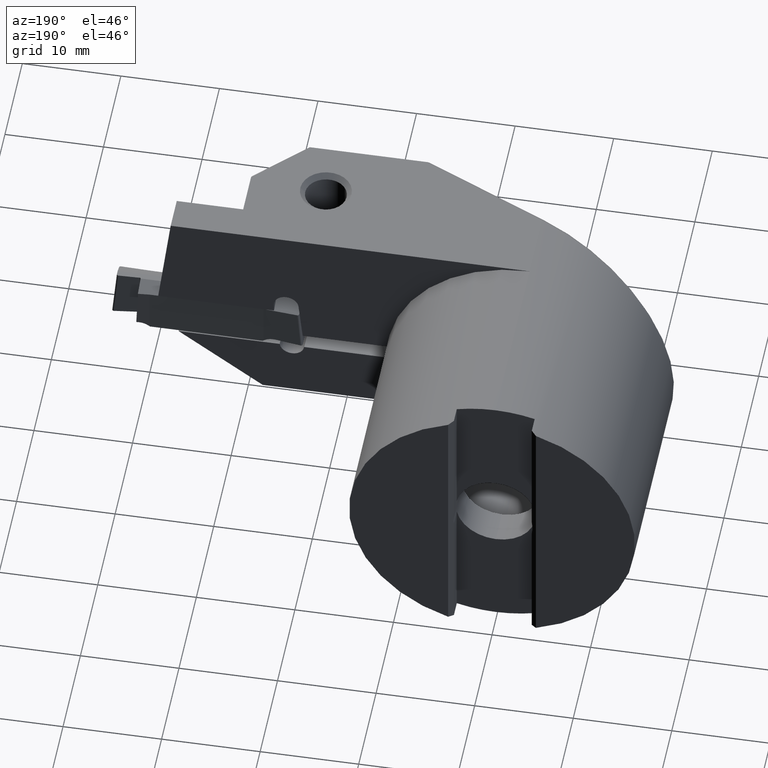
[diagram: clean part render]
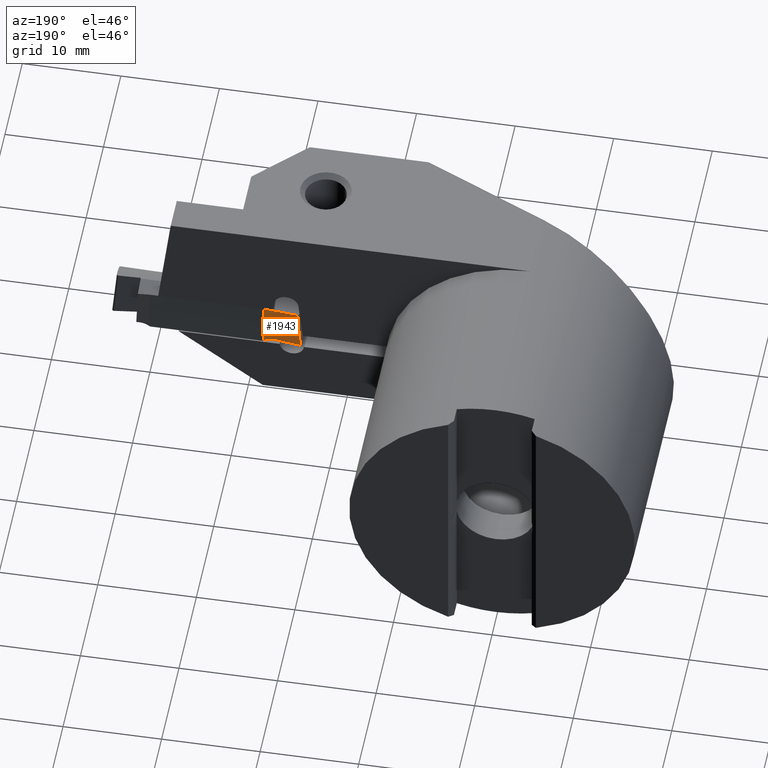
[diagram: same view with one face highlighted and labeled with its STEP entity id]
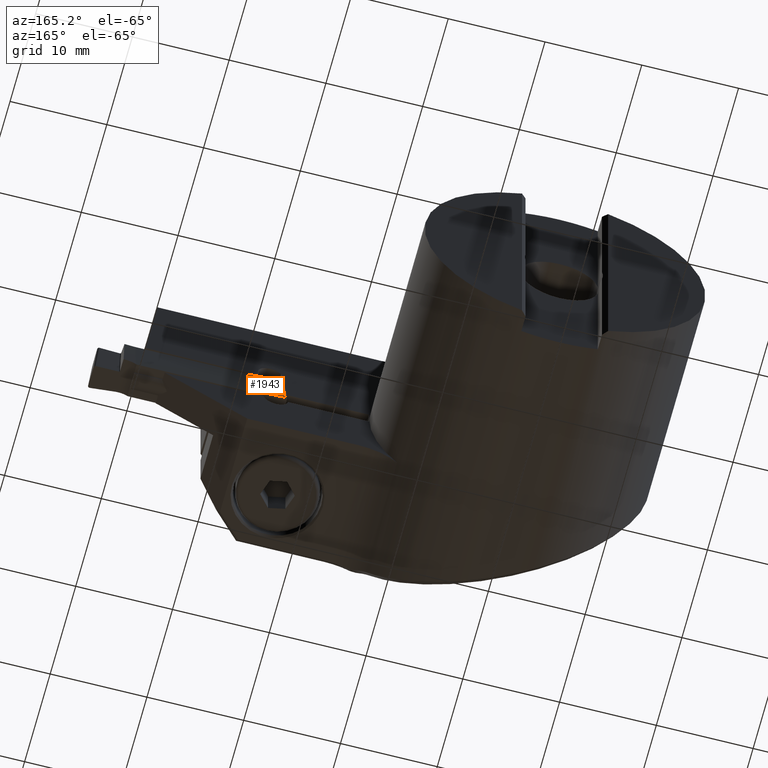
[diagram: same view with one face highlighted and labeled with its STEP entity id]
A machine part, auxiliary view. The second image highlights one B-rep face of the part: STEP entity #1943.
A second angle (auxiliary view) of the same face is appended — the face is thin or edge-on in the first view.
In plain terms, the highlighted planar face has unit normal (0.0499, 0.9981, 0.0349).
Its self-contained STEP definition (entity closure, byte-faithful):
#1107=EDGE_CURVE('NONE',#1557,#1757,#2677,.T.);
#1299=EDGE_CURVE('NONE',#2027,#1833,#2883,.T.);
#1321=EDGE_CURVE('NONE',#1727,#1749,#2906,.T.);
#1519=EDGE_CURVE('NONE',#1757,#1727,#3123,.T.);
#1557=VERTEX_POINT('NONE',#3166);
#1655=EDGE_CURVE('NONE',#1557,#1833,#3275,.T.);
#1679=EDGE_CURVE('NONE',#2027,#1749,#3301,.T.);
#1727=VERTEX_POINT('NONE',#3353);
#1749=VERTEX_POINT('NONE',#3375);
#1757=VERTEX_POINT('NONE',#3383);
#1833=VERTEX_POINT('NONE',#3469);
#1943=ADVANCED_FACE('NONE',(#3591),#3592,.T.);
#2027=VERTEX_POINT('NONE',#3689);
#2677=LINE('',#4801,#4802);
#2883=LINE('',#5133,#5134);
#2906=(B_SPLINE_CURVE(3,(#5168,#5169,#5170,#5171),.UNSPECIFIED.,.F.,.F.)B_SPLINE_CURVE_WITH_KNOTS((4,4),(2.18104418771983,2.87928060510375),.UNSPECIFIED.)RATIONAL_B_SPLINE_CURVE((1.0,0.959783141271317,0.959783141271317,1.0))BOUNDED_CURVE()REPRESENTATION_ITEM('')GEOMETRIC_REPRESENTATION_ITEM()CURVE());
#3123=(B_SPLINE_CURVE(3,(#5665,#5666,#5667,#5668),.UNSPECIFIED.,.F.,.F.)B_SPLINE_CURVE_WITH_KNOTS((4,4),(2.09377772512011,2.18104418771983),.UNSPECIFIED.)RATIONAL_B_SPLINE_CURVE((1.0,0.999365481054572,0.999365481054572,1.0))BOUNDED_CURVE()REPRESENTATION_ITEM('')GEOMETRIC_REPRESENTATION_ITEM()CURVE());
#3166=CARTESIAN_POINT('',(23.2283580672985,-21.5208433095375,-0.0874118732534016));
#3275=LINE('',#5884,#5885);
#3301=LINE('',#5973,#5974);
#3353=CARTESIAN_POINT('',(25.9616607926225,-21.6656518860979,0.145494794001306));
#3375=CARTESIAN_POINT('',(27.0095353452879,-21.7047081913769,-0.235962486714983));
#3383=CARTESIAN_POINT('',(25.8195969319438,-21.6583318214463,0.139292151890852));
#3469=CARTESIAN_POINT('',(23.5858593512144,-21.6815919182436,3.99884650021012));
#3591=FACE_OUTER_BOUND('',#6475,.T.);
#3592=PLANE('',#6476);
#3689=CARTESIAN_POINT('',(27.0057526747857,-21.8561095191966,4.09960428409865));
#4801=CARTESIAN_POINT('',(26.9609709626323,-21.7188919724812,0.239149440418986));
#4802=VECTOR('',#7570,1000.0);
#5133=CARTESIAN_POINT('',(46.2406075435113,-22.8376666640445,4.66630656590156));
#5134=VECTOR('',#7753,1000.0);
#5168=CARTESIAN_POINT('',(25.9616607926225,-21.6656518860979,0.145494794001306));
#5169=CARTESIAN_POINT('',(26.3489517725841,-21.6850164350959,0.145494794001307));
#5170=CARTESIAN_POINT('',(26.7128793126037,-21.6985807163034,0.0130144227197219));
#5171=CARTESIAN_POINT('',(27.0095353452879,-21.7047081913769,-0.235962486714983));
#5665=CARTESIAN_POINT('',(25.8195969319438,-21.6583318214463,0.139292151890852));
#5666=CARTESIAN_POINT('',(25.8668462765192,-21.6608388238546,0.143425933900226));
#5667=CARTESIAN_POINT('',(25.9142309632269,-21.6632803946281,0.145494794001306));
#5668=CARTESIAN_POINT('',(25.9616607926225,-21.6656518860979,0.145494794001306));
#5884=CARTESIAN_POINT('',(23.5837575386511,-21.6806468490634,3.97482267268037));
#5885=VECTOR('',#8207,1000.0);
#5973=CARTESIAN_POINT('',(27.0095969319438,-21.7022431864336,-0.306550992616995));
#5974=VECTOR('',#8228,1000.0);
#6475=EDGE_LOOP('',(#8525,#8526,#8527,#8528,#8529,#8530));
#6476=AXIS2_PLACEMENT_3D('',#8531,#8532,#8533);
#7570=DIRECTION('',(0.994805987497139,-0.0527833989853409,0.087034246313712));
#7753=DIRECTION('',(-0.998268458314074,0.0509417692216449,-0.029411244173112));
#8207=DIRECTION('',(0.0870888933687241,-0.0391590717925092,0.995430606194204));
#8228=DIRECTION('',(0.00087194246203216,0.0348994834357406,-0.999390447108767));
#8525=ORIENTED_EDGE('',*,*,#1107,.F.);
#8526=ORIENTED_EDGE('',*,*,#1655,.T.);
#8527=ORIENTED_EDGE('',*,*,#1299,.F.);
#8528=ORIENTED_EDGE('',*,*,#1679,.T.);
#8529=ORIENTED_EDGE('',*,*,#1321,.F.);
#8530=ORIENTED_EDGE('',*,*,#1519,.F.);
#8531=CARTESIAN_POINT('',(27.0095969319438,-21.7022431864336,-0.306550992616995));
#8532=DIRECTION('',(0.0499071962969192,0.998143925938385,0.0348994967025016));
#8533=DIRECTION('',(0.573070601217156,4.61545933638618E-016,-0.819506001210856));